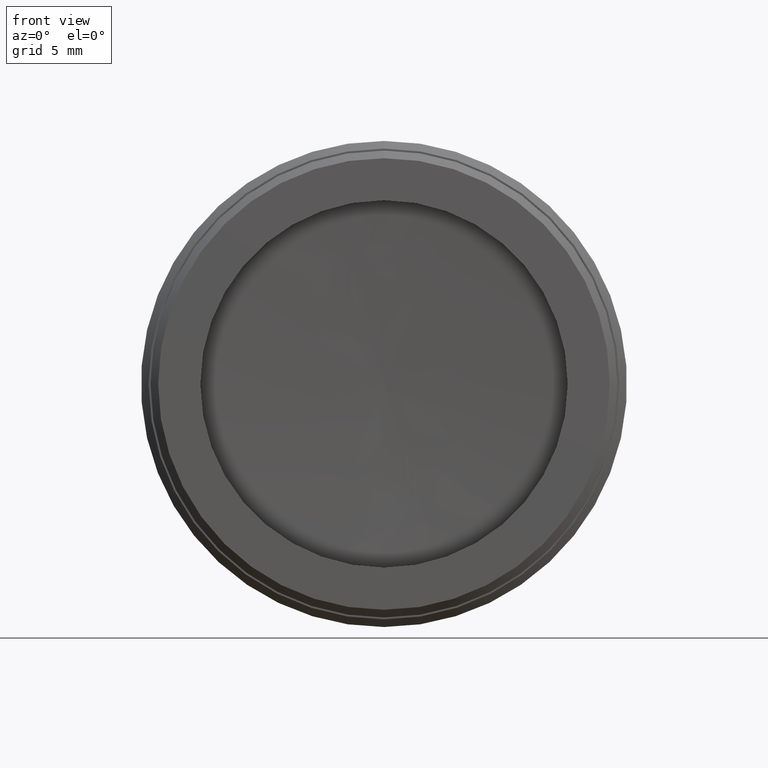
[diagram: clean part render]
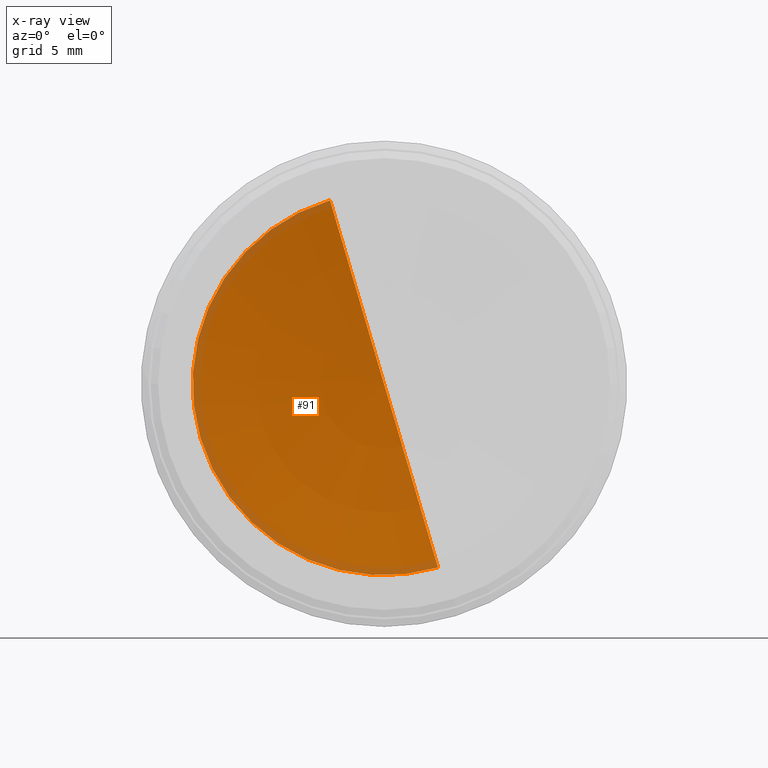
[diagram: x-ray — body ghosted, one internal face saturated and labeled with its STEP entity id]
A machine part, front view, then the same camera in x-ray: the body is ghosted and one INTERNAL B-rep face — a face not visible from any outside direction — is saturated and labeled: STEP entity #91.
In plain terms, the highlighted spherical surface has radius 68.87 mm.
Its self-contained STEP definition (entity closure, byte-faithful):
#91 = ADVANCED_FACE ( 'NONE', ( #958 ), #1292, .T. ) ;
#102 = CARTESIAN_POINT ( 'NONE',  ( -62.96855859389907550, 9.452326395800902503, 19.92647029529259584 ) ) ;
#175 = CARTESIAN_POINT ( 'NONE',  ( -66.49587682431806002, 9.452326395800902503, 31.91846871512879602 ) ) ;
#243 = DIRECTION ( 'NONE',  ( 0.2821854584335176663, 0.000000000000000000, -0.9593598735868961169 ) ) ;
#247 = CARTESIAN_POINT ( 'NONE',  ( -62.96855859389908971, -58.27379042777059226, 19.92647029529259584 ) ) ;
#265 = VERTEX_POINT ( 'NONE', #175 ) ;
#436 = DIRECTION ( 'NONE',  ( 1.224646799392939166E-16, 1.000000000000000000, -8.078478459393387146E-27 ) ) ;
#467 = ORIENTED_EDGE ( 'NONE', *, *, #1295, .T. ) ;
#504 = CARTESIAN_POINT ( 'NONE',  ( -59.44124036348010520, 9.452326395800902503, 7.934471875456390322 ) ) ;
#586 = CIRCLE ( 'NONE', #833, 12.50000000000000178 ) ;
#612 = AXIS2_PLACEMENT_3D ( 'NONE', #1286, #732, #1203 ) ;
#676 = VERTEX_POINT ( 'NONE', #504 ) ;
#716 = DIRECTION ( 'NONE',  ( -1.127129848887182185E-16, -1.000000000000000000, -3.315332044617999309E-17 ) ) ;
#732 = DIRECTION ( 'NONE',  ( -0.9593598735868961169, 1.174876998631410462E-16, -0.2821854584335177774 ) ) ;
#833 = AXIS2_PLACEMENT_3D ( 'NONE', #102, #436, #1178 ) ;
#882 = EDGE_CURVE ( 'NONE', #676, #265, #586, .T. ) ;
#913 = ORIENTED_EDGE ( 'NONE', *, *, #882, .T. ) ;
#958 = FACE_OUTER_BOUND ( 'NONE', #1388, .T. ) ;
#1090 = CIRCLE ( 'NONE', #612, 68.87000000000001876 ) ;
#1178 = DIRECTION ( 'NONE',  ( 0.2821854584335176108, 0.000000000000000000, -0.9593598735868961169 ) ) ;
#1203 = DIRECTION ( 'NONE',  ( 0.2821854584335177774, 0.000000000000000000, -0.9593598735868961169 ) ) ;
#1285 = AXIS2_PLACEMENT_3D ( 'NONE', #247, #716, #243 ) ;
#1286 = CARTESIAN_POINT ( 'NONE',  ( -62.96855859389908971, -58.27379042777059226, 19.92647029529259584 ) ) ;
#1292 = SPHERICAL_SURFACE ( 'NONE', #1285, 68.87000000000000455 ) ;
#1295 = EDGE_CURVE ( 'NONE', #265, #676, #1090, .T. ) ;
#1388 = EDGE_LOOP ( 'NONE', ( #913, #467 ) ) ;